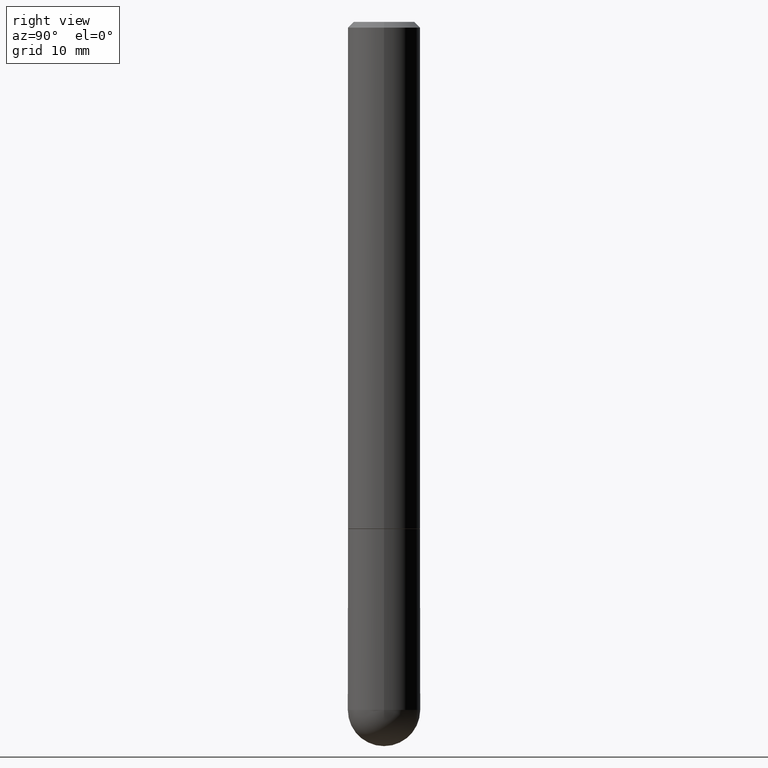
[diagram: clean part render]
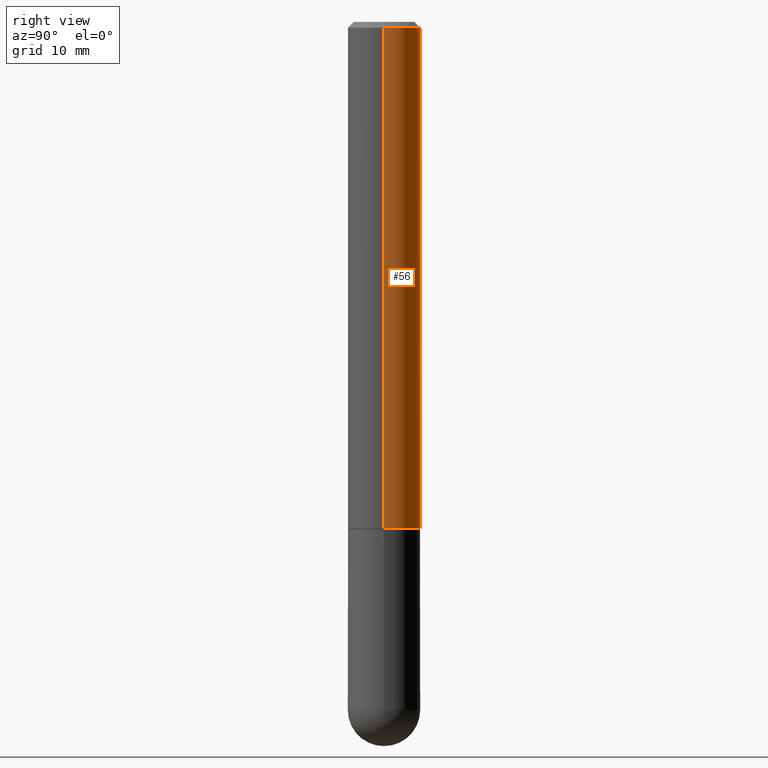
[diagram: same view with one face highlighted and labeled with its STEP entity id]
A machine part, right view. The second image highlights one B-rep face of the part: STEP entity #56.
In plain terms, the highlighted cylindrical surface (edge-blend (fillet) strip) has radius 3.175 mm, axis along (-0, 0, 1).
Its self-contained STEP definition (entity closure, byte-faithful):
#15 = DIRECTION ( 'NONE',  ( 1.000000000000000000, -6.982962677686264344E-15, 0.000000000000000000 ) ) ;
#31 = AXIS2_PLACEMENT_3D ( 'NONE', #53, #168, #73 ) ;
#37 = AXIS2_PLACEMENT_3D ( 'NONE', #211, #314, #100 ) ;
#39 = ORIENTED_EDGE ( 'NONE', *, *, #162, .F. ) ;
#52 = CARTESIAN_POINT ( 'NONE',  ( 0.1250000000000000278, -9.273918764983049407E-16, -0.02000000000000007674 ) ) ;
#53 = CARTESIAN_POINT ( 'NONE',  ( 4.890937612370292426E-31, -6.982962677686317493E-17, -0.02000000000000007674 ) ) ;
#56 = ADVANCED_FACE ( 'NONE', ( #244 ), #385, .T. ) ;
#66 = EDGE_LOOP ( 'NONE', ( #203, #116, #39, #226 ) ) ;
#73 = DIRECTION ( 'NONE',  ( 1.000000000000000000, -6.982962677686267499E-15, 0.000000000000000000 ) ) ;
#74 = CARTESIAN_POINT ( 'NONE',  ( -0.1250000000000001388, 8.881784197001262184E-16, -6.148668862818638533E-30 ) ) ;
#76 = DIRECTION ( 'NONE',  ( -2.445468806185136877E-29, 3.491481338843145188E-15, 1.000000000000000000 ) ) ;
#100 = DIRECTION ( 'NONE',  ( 1.000000000000000000, -6.982962677686266711E-15, 4.876176775795935793E-29 ) ) ;
#116 = ORIENTED_EDGE ( 'NONE', *, *, #191, .T. ) ;
#141 = LINE ( 'NONE', #399, #188 ) ;
#144 = VECTOR ( 'NONE', #76, 39.37007874015748143 ) ;
#146 = VERTEX_POINT ( 'NONE', #294 ) ;
#157 = CARTESIAN_POINT ( 'NONE',  ( 4.277124942017804562E-29, -6.106600861636661664E-15, -1.749000000000000110 ) ) ;
#162 = EDGE_CURVE ( 'NONE', #269, #249, #304, .T. ) ;
#168 = DIRECTION ( 'NONE',  ( -2.445468806185136597E-29, 3.491481338843145583E-15, 1.000000000000000000 ) ) ;
#188 = VECTOR ( 'NONE', #262, 39.37007874015748143 ) ;
#191 = EDGE_CURVE ( 'NONE', #146, #249, #351, .T. ) ;
#203 = ORIENTED_EDGE ( 'NONE', *, *, #255, .T. ) ;
#211 = CARTESIAN_POINT ( 'NONE',  ( 0.000000000000000000, 0.000000000000000000, 0.000000000000000000 ) ) ;
#213 = EDGE_CURVE ( 'NONE', #346, #269, #141, .T. ) ;
#226 = ORIENTED_EDGE ( 'NONE', *, *, #213, .F. ) ;
#229 = CARTESIAN_POINT ( 'NONE',  ( -0.1250000000000000278, 8.030407079339204351E-16, -0.02000000000000007674 ) ) ;
#240 = CARTESIAN_POINT ( 'NONE',  ( 0.1250000000000002498, -6.979471196347446580E-15, -1.749000000000000110 ) ) ;
#244 = FACE_OUTER_BOUND ( 'NONE', #66, .T. ) ;
#249 = VERTEX_POINT ( 'NONE', #229 ) ;
#252 = AXIS2_PLACEMENT_3D ( 'NONE', #157, #285, #15 ) ;
#255 = EDGE_CURVE ( 'NONE', #346, #146, #270, .T. ) ;
#262 = DIRECTION ( 'NONE',  ( -2.445468806185136877E-29, 3.491481338843145188E-15, 1.000000000000000000 ) ) ;
#269 = VERTEX_POINT ( 'NONE', #52 ) ;
#270 = CIRCLE ( 'NONE', #252, 0.1250000000000002498 ) ;
#285 = DIRECTION ( 'NONE',  ( -2.445468806185136597E-29, 3.491481338843145583E-15, 1.000000000000000000 ) ) ;
#294 = CARTESIAN_POINT ( 'NONE',  ( -0.1250000000000002498, -2.200036824506632516E-15, -1.749000000000000110 ) ) ;
#304 = CIRCLE ( 'NONE', #31, 0.1250000000000000278 ) ;
#314 = DIRECTION ( 'NONE',  ( -2.445468806185136597E-29, 3.491481338843145583E-15, 1.000000000000000000 ) ) ;
#346 = VERTEX_POINT ( 'NONE', #240 ) ;
#351 = LINE ( 'NONE', #74, #144 ) ;
#385 = CYLINDRICAL_SURFACE ( 'NONE', #37, 0.1250000000000001388 ) ;
#399 = CARTESIAN_POINT ( 'NONE',  ( 0.1250000000000001388, -8.728703347107843249E-16, 6.095220969744926748E-30 ) ) ;